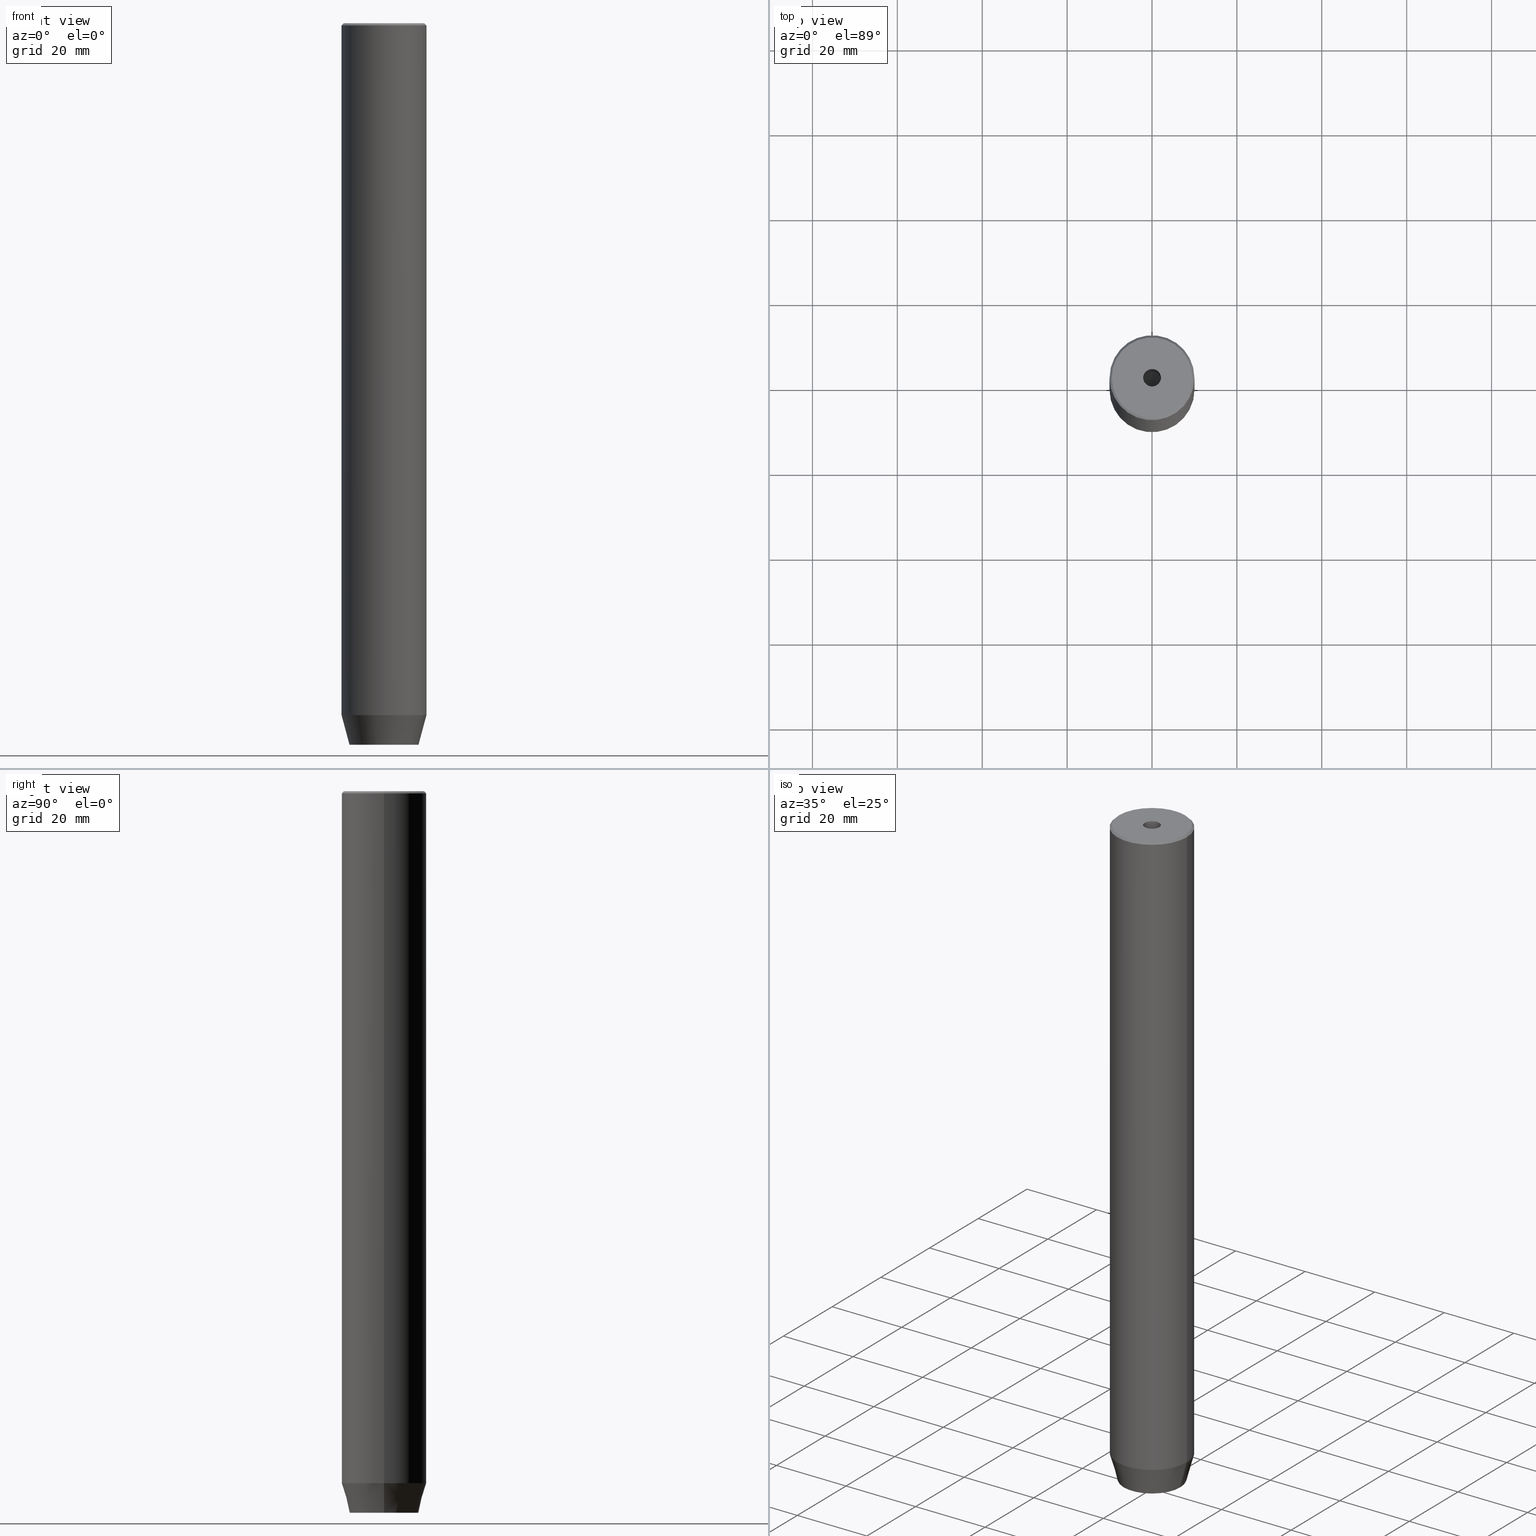
[diagram: canonical four-view strip — front | top / right | iso, engineering-drawing reading convention]
A machine part, canonical four-view strip (front | top / right | iso — engineering-drawing reading convention). The complete STEP part file that produces these views, byte-faithful:
ISO-10303-21;
HEADER;
FILE_DESCRIPTION (( 'STEP AP203' ),
    '1' );
FILE_NAME ('cb04.STEP',
    '2024-01-02T19:04:12',
    ( '' ),
    ( '' ),
    'SwSTEP 2.0',
    'SolidWorks 2019',
    '' );
FILE_SCHEMA (( 'CONFIG_CONTROL_DESIGN' ));
ENDSEC;

DATA;
#1 = AXIS2_PLACEMENT_3D ( 'NONE', #403, #184, #138 ) ;
#2 = FACE_OUTER_BOUND ( 'NONE', #290, .T. ) ;
#3 = ORIENTED_EDGE ( 'NONE', *, *, #459, .F. ) ;
#4 = CARTESIAN_POINT ( 'NONE',  ( 2.000000000000000444, 3.464101615137754386, -170.0000000000000000 ) ) ;
#5 = DIRECTION ( 'NONE',  ( 0.8660254037844384856, 0.5000000000000002220, 0.000000000000000000 ) ) ;
#6 = ORIENTED_EDGE ( 'NONE', *, *, #306, .F. ) ;
#7 = DIRECTION ( 'NONE',  ( 0.000000000000000000, 0.000000000000000000, 1.000000000000000000 ) ) ;
#8 = CARTESIAN_POINT ( 'NONE',  ( 4.336808689942017736E-16, -4.618802153517006737, -167.2000000000000171 ) ) ;
#9 = VERTEX_POINT ( 'NONE', #70 ) ;
#10 = ORIENTED_EDGE ( 'NONE', *, *, #431, .T. ) ;
#11 = DIRECTION ( 'NONE',  ( -0.000000000000000000, -0.000000000000000000, 1.000000000000000000 ) ) ;
#12 = AXIS2_PLACEMENT_3D ( 'NONE', #384, #158, #7 ) ;
#13 = EDGE_LOOP ( 'NONE', ( #19, #339, #200, #374 ) ) ;
#14 = CC_DESIGN_SECURITY_CLASSIFICATION ( #390, ( #280 ) ) ;
#15 = EDGE_LOOP ( 'NONE', ( #393, #432, #225 ) ) ;
#16 = DIRECTION ( 'NONE',  ( 0.8660254037844385966, -0.5000000000000001110, 0.000000000000000000 ) ) ;
#17 = ORIENTED_EDGE ( 'NONE', *, *, #457, .F. ) ;
#18 = CARTESIAN_POINT ( 'NONE',  ( -2.000000000000000888, -3.464101615137754386, -167.2000000000000171 ) ) ;
#19 = ORIENTED_EDGE ( 'NONE', *, *, #75, .T. ) ;
#20 = ADVANCED_FACE ( 'NONE', ( #257 ), #203, .T. ) ;
#21 = ORIENTED_EDGE ( 'NONE', *, *, #311, .F. ) ;
#22 = DIRECTION ( 'NONE',  ( -0.8660254037844385966, -0.4999999999999999445, 0.000000000000000000 ) ) ;
#23 = CARTESIAN_POINT ( 'NONE',  ( 0.000000000000000000, 0.000000000000000000, -162.9999999999999716 ) ) ;
#24 = CC_DESIGN_PERSON_AND_ORGANIZATION_ASSIGNMENT ( #282, #137, ( #280 ) ) ;
#25 = AXIS2_PLACEMENT_3D ( 'NONE', #185, #362, #462 ) ;
#26 = CIRCLE ( 'NONE', #131, 10.00000000000000000 ) ;
#27 = CARTESIAN_POINT ( 'NONE',  ( 2.000000000000000444, 3.464101615137754386, -167.2000000000000171 ) ) ;
#28 = PLANE ( 'NONE',  #352 ) ;
#29 = VERTEX_POINT ( 'NONE', #388 ) ;
#30 = CARTESIAN_POINT ( 'NONE',  ( -4.000000000000000000, -2.309401076758503368, -167.2000000000000171 ) ) ;
#31 = CARTESIAN_POINT ( 'NONE',  ( 2.099999999999995648, 0.000000000000000000, -25.00000000000000000 ) ) ;
#32 = VERTEX_POINT ( 'NONE', #563 ) ;
#33 = DIRECTION ( 'NONE',  ( -0.000000000000000000, -0.000000000000000000, -1.000000000000000000 ) ) ;
#34 = VECTOR ( 'NONE', #160, 1000.000000000000000 ) ;
#35 = CARTESIAN_POINT ( 'NONE',  ( 0.000000000000000000, 8.124355652982128362, -170.0000000000000000 ) ) ;
#36 = VERTEX_POINT ( 'NONE', #105 ) ;
#37 = ADVANCED_FACE ( 'NONE', ( #422 ), #269, .F. ) ;
#38 = ORIENTED_EDGE ( 'NONE', *, *, #186, .T. ) ;
#39 = CALENDAR_DATE ( 2024, 2, 1 ) ;
#40 = FACE_BOUND ( 'NONE', #84, .T. ) ;
#41 = CARTESIAN_POINT ( 'NONE',  ( 0.000000000000000000, 0.000000000000000000, 0.000000000000000000 ) ) ;
#42 = EDGE_LOOP ( 'NONE', ( #347, #61, #140, #360 ) ) ;
#43 = APPROVAL_DATE_TIME ( #177, #513 ) ;
#44 = CARTESIAN_POINT ( 'NONE',  ( -2.000000000000000000, 3.464101615137754830, -170.0000000000000000 ) ) ;
#45 = CARTESIAN_POINT ( 'NONE',  ( 0.000000000000000000, 0.000000000000000000, -170.0000000000000000 ) ) ;
#46 = ORIENTED_EDGE ( 'NONE', *, *, #425, .T. ) ;
#47 = DIRECTION ( 'NONE',  ( 1.000000000000000000, 0.000000000000000000, 0.000000000000000000 ) ) ;
#48 = EDGE_CURVE ( 'NONE', #534, #484, #536, .T. ) ;
#49 = EDGE_CURVE ( 'NONE', #36, #557, #227, .T. ) ;
#50 = CARTESIAN_POINT ( 'NONE',  ( -9.499999999999980460, 0.000000000000000000, 0.000000000000000000 ) ) ;
#51 = PERSON_AND_ORGANIZATION ( #287, #154 ) ;
#52 = CARTESIAN_POINT ( 'NONE',  ( 2.000000000000000444, 3.464101615137754386, -167.2000000000000171 ) ) ;
#53 = FACE_OUTER_BOUND ( 'NONE', #60, .T. ) ;
#54 = EDGE_LOOP ( 'NONE', ( #349, #129, #511, #295 ) ) ;
#55 = AXIS2_PLACEMENT_3D ( 'NONE', #45, #233, #319 ) ;
#56 = DIRECTION ( 'NONE',  ( -0.8660254037844384856, 0.5000000000000002220, 0.000000000000000000 ) ) ;
#57 = CC_DESIGN_APPROVAL ( #554, ( #280 ) ) ;
#58 = ADVANCED_FACE ( 'NONE', ( #40, #452 ), #190, .T. ) ;
#59 = CARTESIAN_POINT ( 'NONE',  ( 4.000000000000000000, 2.309401076758503368, -167.2000000000000171 ) ) ;
#60 = EDGE_LOOP ( 'NONE', ( #244, #38, #555, #197 ) ) ;
#61 = ORIENTED_EDGE ( 'NONE', *, *, #387, .T. ) ;
#62 = DIRECTION ( 'NONE',  ( 0.000000000000000000, 0.000000000000000000, -1.000000000000000000 ) ) ;
#63 = ORIENTED_EDGE ( 'NONE', *, *, #431, .F. ) ;
#64 = ADVANCED_FACE ( 'NONE', ( #91 ), #366, .F. ) ;
#65 = DIRECTION ( 'NONE',  ( -0.000000000000000000, -0.000000000000000000, 1.000000000000000000 ) ) ;
#66 = ORIENTED_EDGE ( 'NONE', *, *, #195, .F. ) ;
#67 = AXIS2_PLACEMENT_3D ( 'NONE', #340, #249, #293 ) ;
#68 = DIRECTION ( 'NONE',  ( 1.000000000000000000, 0.000000000000000000, 0.000000000000000000 ) ) ;
#69 = EDGE_CURVE ( 'NONE', #484, #230, #276, .T. ) ;
#70 = CARTESIAN_POINT ( 'NONE',  ( -2.099999999999998757, 2.571758278209440478E-16, -1.990051048614449116E-16 ) ) ;
#71 = CARTESIAN_POINT ( 'NONE',  ( 0.000000000000000000, 4.618802153517006737, -167.2000000000000171 ) ) ;
#72 = CARTESIAN_POINT ( 'NONE',  ( 0.000000000000000000, 0.000000000000000000, 0.000000000000000000 ) ) ;
#73 = CONICAL_SURFACE ( 'NONE', #193, 10.00000000000000000, 0.2617993877991499629 ) ;
#74 = CARTESIAN_POINT ( 'NONE',  ( 4.000000000000000000, -2.309401076758502480, -170.0000000000000000 ) ) ;
#75 = EDGE_CURVE ( 'NONE', #557, #32, #289, .T. ) ;
#76 = DIRECTION ( 'NONE',  ( 0.000000000000000000, 1.000000000000000000, 0.000000000000000000 ) ) ;
#77 = LINE ( 'NONE', #305, #310 ) ;
#78 = DESIGN_CONTEXT ( 'detailed design', #198, 'design' ) ;
#79 = LINE ( 'NONE', #260, #321 ) ;
#80 = ADVANCED_FACE ( 'NONE', ( #333 ), #514, .F. ) ;
#81 = VECTOR ( 'NONE', #414, 1000.000000000000114 ) ;
#82 = APPROVAL_PERSON_ORGANIZATION ( #95, #513, #83 ) ;
#83 = APPROVAL_ROLE ( '' ) ;
#84 = EDGE_LOOP ( 'NONE', ( #136, #266 ) ) ;
#85 = EDGE_CURVE ( 'NONE', #356, #552, #523, .T. ) ;
#86 = DATE_AND_TIME ( #39, #418 ) ;
#87 = DIRECTION ( 'NONE',  ( 0.8660254037844387076, 0.5000000000000001110, 0.000000000000000000 ) ) ;
#88 = LINE ( 'NONE', #504, #170 ) ;
#89 = ORIENTED_EDGE ( 'NONE', *, *, #49, .F. ) ;
#90 = DATE_AND_TIME ( #573, #470 ) ;
#91 = FACE_OUTER_BOUND ( 'NONE', #439, .T. ) ;
#92 = DIRECTION ( 'NONE',  ( -0.000000000000000000, -0.000000000000000000, -1.000000000000000000 ) ) ;
#93 = VECTOR ( 'NONE', #323, 1000.000000000000000 ) ;
#94 = AXIS2_PLACEMENT_3D ( 'NONE', #281, #587, #47 ) ;
#95 = PERSON_AND_ORGANIZATION ( #287, #154 ) ;
#96 = VECTOR ( 'NONE', #33, 1000.000000000000000 ) ;
#97 = LINE ( 'NONE', #411, #580 ) ;
#98 = CALENDAR_DATE ( 2024, 2, 1 ) ;
#99 = LINE ( 'NONE', #52, #445 ) ;
#100 = DIRECTION ( 'NONE',  ( 1.000000000000000000, 0.000000000000000000, 0.000000000000000000 ) ) ;
#101 = EDGE_LOOP ( 'NONE', ( #376, #210, #547, #208 ) ) ;
#102 = CYLINDRICAL_SURFACE ( 'NONE', #516, 2.099999999999996980 ) ;
#103 = ORIENTED_EDGE ( 'NONE', *, *, #214, .T. ) ;
#104 = CIRCLE ( 'NONE', #55, 8.124355652982128362 ) ;
#105 = CARTESIAN_POINT ( 'NONE',  ( -4.000000000000000000, 2.309401076758503368, -170.0000000000000000 ) ) ;
#106 = CARTESIAN_POINT ( 'NONE',  ( 9.499999999999980460, 1.163414459189983119E-15, 0.000000000000000000 ) ) ;
#107 = VERTEX_POINT ( 'NONE', #50 ) ;
#108 = AXIS2_PLACEMENT_3D ( 'NONE', #512, #11, #467 ) ;
#109 = CARTESIAN_POINT ( 'NONE',  ( 4.336808689942017736E-16, -4.618802153517006737, -167.2000000000000171 ) ) ;
#110 = EDGE_LOOP ( 'NONE', ( #247, #424, #568, #181 ) ) ;
#111 = ORIENTED_EDGE ( 'NONE', *, *, #306, .T. ) ;
#112 = CARTESIAN_POINT ( 'NONE',  ( 2.099999999999996980, 0.000000000000000000, 0.000000000000000000 ) ) ;
#113 = ORIENTED_EDGE ( 'NONE', *, *, #69, .F. ) ;
#114 = PLANE ( 'NONE',  #144 ) ;
#115 = AXIS2_PLACEMENT_3D ( 'NONE', #199, #517, #243 ) ;
#116 = APPROVAL_PERSON_ORGANIZATION ( #51, #220, #535 ) ;
#117 = PRODUCT_RELATED_PRODUCT_CATEGORY ( 'detail', '', ( #487 ) ) ;
#118 = DIRECTION ( 'NONE',  ( -1.000000000000000000, 0.000000000000000000, -0.000000000000000000 ) ) ;
#119 = CARTESIAN_POINT ( 'NONE',  ( 4.000000000000000000, -2.309401076758502480, -167.2000000000000171 ) ) ;
#120 = ADVANCED_FACE ( 'NONE', ( #409 ), #73, .T. ) ;
#121 = CARTESIAN_POINT ( 'NONE',  ( 0.000000000000000000, 0.000000000000000000, -25.00000000000000000 ) ) ;
#122 = CARTESIAN_POINT ( 'NONE',  ( 0.000000000000000000, 0.000000000000000000, -25.00000000000000000 ) ) ;
#123 = AXIS2_PLACEMENT_3D ( 'NONE', #463, #322, #370 ) ;
#124 = AXIS2_PLACEMENT_3D ( 'NONE', #268, #572, #564 ) ;
#125 = CYLINDRICAL_SURFACE ( 'NONE', #570, 10.00000000000000000 ) ;
#126 = CARTESIAN_POINT ( 'NONE',  ( 10.00000000000000000, 0.000000000000000000, -162.9999999999999716 ) ) ;
#127 = APPROVAL_STATUS ( 'not_yet_approved' ) ;
#128 = VECTOR ( 'NONE', #456, 1000.000000000000114 ) ;
#129 = ORIENTED_EDGE ( 'NONE', *, *, #216, .F. ) ;
#130 = EDGE_CURVE ( 'NONE', #477, #356, #99, .T. ) ;
#131 = AXIS2_PLACEMENT_3D ( 'NONE', #520, #423, #386 ) ;
#132 = VECTOR ( 'NONE', #300, 1000.000000000000114 ) ;
#133 = APPROVAL_STATUS ( 'not_yet_approved' ) ;
#134 = DIRECTION ( 'NONE',  ( 1.000000000000000000, 0.000000000000000000, 0.000000000000000000 ) ) ;
#135 = DIRECTION ( 'NONE',  ( -1.000000000000000000, 0.000000000000000000, 0.000000000000000000 ) ) ;
#136 = ORIENTED_EDGE ( 'NONE', *, *, #250, .F. ) ;
#137 = PERSON_AND_ORGANIZATION_ROLE ( 'creator' ) ;
#138 = DIRECTION ( 'NONE',  ( 1.000000000000000000, 0.000000000000000000, 0.000000000000000000 ) ) ;
#139 = CARTESIAN_POINT ( 'NONE',  ( 10.00000000000000000, 0.000000000000000000, -0.4999999999999987232 ) ) ;
#140 = ORIENTED_EDGE ( 'NONE', *, *, #285, .F. ) ;
#141 = ADVANCED_FACE ( 'NONE', ( #405 ), #455, .F. ) ;
#142 = CARTESIAN_POINT ( 'NONE',  ( 9.499999999999980460, 1.194030629168668286E-15, 0.000000000000000000 ) ) ;
#143 = VECTOR ( 'NONE', #87, 999.9999999999998863 ) ;
#144 = AXIS2_PLACEMENT_3D ( 'NONE', #338, #373, #22 ) ;
#145 = APPROVAL_PERSON_ORGANIZATION ( #357, #554, #324 ) ;
#146 = CARTESIAN_POINT ( 'NONE',  ( -8.124355652982128362, 1.109796706851640162E-15, -170.0000000000000000 ) ) ;
#147 = VERTEX_POINT ( 'NONE', #317 ) ;
#148 = DIRECTION ( 'NONE',  ( 0.5000000000000003331, -0.8660254037844385966, 0.000000000000000000 ) ) ;
#149 = EDGE_LOOP ( 'NONE', ( #176, #354, #450, #447 ) ) ;
#150 = LINE ( 'NONE', #476, #194 ) ;
#151 = EDGE_CURVE ( 'NONE', #383, #36, #237, .T. ) ;
#152 = AXIS2_PLACEMENT_3D ( 'NONE', #546, #148, #5 ) ;
#153 = LINE ( 'NONE', #18, #561 ) ;
#154 = ORGANIZATION ( 'NEUR�EN�', 'NEUR�EN�', '' ) ;
#155 = ORIENTED_EDGE ( 'NONE', *, *, #394, .F. ) ;
#156 = LINE ( 'NONE', #420, #507 ) ;
#157 = ORIENTED_EDGE ( 'NONE', *, *, #571, .F. ) ;
#158 = DIRECTION ( 'NONE',  ( -1.000000000000000000, 0.000000000000000000, 0.000000000000000000 ) ) ;
#159 = EDGE_CURVE ( 'NONE', #168, #481, #180, .T. ) ;
#160 = DIRECTION ( 'NONE',  ( -0.000000000000000000, -0.000000000000000000, -1.000000000000000000 ) ) ;
#161 = EDGE_CURVE ( 'NONE', #230, #36, #493, .T. ) ;
#162 = VERTEX_POINT ( 'NONE', #31 ) ;
#163 = EDGE_LOOP ( 'NONE', ( #575, #444, #401, #468 ) ) ;
#164 = DIRECTION ( 'NONE',  ( -0.000000000000000000, -0.000000000000000000, 1.000000000000000000 ) ) ;
#165 = EDGE_CURVE ( 'NONE', #552, #284, #224, .T. ) ;
#166 = VERTEX_POINT ( 'NONE', #142 ) ;
#167 = FACE_OUTER_BOUND ( 'NONE', #54, .T. ) ;
#168 = VERTEX_POINT ( 'NONE', #146 ) ;
#169 = DIRECTION ( 'NONE',  ( -0.000000000000000000, -0.000000000000000000, -1.000000000000000000 ) ) ;
#170 = VECTOR ( 'NONE', #359, 1000.000000000000000 ) ;
#171 = AXIS2_PLACEMENT_3D ( 'NONE', #299, #205, #286 ) ;
#172 = LOCAL_TIME ( 20, 4, 12.00000000000000000, #313 ) ;
#173 = UNCERTAINTY_MEASURE_WITH_UNIT (LENGTH_MEASURE( 1.000000000000000082E-05 ), #530, 'distance_accuracy_value', 'NONE');
#174 = ADVANCED_FACE ( 'NONE', ( #399 ), #497, .T. ) ;
#175 = CARTESIAN_POINT ( 'NONE',  ( 4.000000000000000000, 0.000000000000000000, -167.2000000000000171 ) ) ;
#176 = ORIENTED_EDGE ( 'NONE', *, *, #387, .F. ) ;
#177 = DATE_AND_TIME ( #502, #172 ) ;
#178 = EDGE_CURVE ( 'NONE', #481, #275, #88, .T. ) ;
#179 = PERSON_AND_ORGANIZATION_ROLE ( 'design_supplier' ) ;
#180 = LINE ( 'NONE', #542, #343 ) ;
#181 = ORIENTED_EDGE ( 'NONE', *, *, #378, .F. ) ;
#182 = CIRCLE ( 'NONE', #261, 10.00000000000000000 ) ;
#183 = DATE_TIME_ROLE ( 'classification_date' ) ;
#184 = DIRECTION ( 'NONE',  ( 0.000000000000000000, -0.000000000000000000, 1.000000000000000000 ) ) ;
#185 = CARTESIAN_POINT ( 'NONE',  ( 0.000000000000000000, 0.000000000000000000, -1.990051048614449116E-16 ) ) ;
#186 = EDGE_CURVE ( 'NONE', #254, #9, #264, .T. ) ;
#187 = CC_DESIGN_PERSON_AND_ORGANIZATION_ASSIGNMENT ( #541, #223, ( #316 ) ) ;
#188 = MANIFOLD_SOLID_BREP ( 'Vrt�k z�vitn�ku pro M5 z�vit1', #543 ) ;
#189 = PERSON_AND_ORGANIZATION ( #287, #154 ) ;
#190 = PLANE ( 'NONE',  #1 ) ;
#191 = CARTESIAN_POINT ( 'NONE',  ( -2.099999999999995648, 2.571758278209436040E-16, -25.00000000000000000 ) ) ;
#192 = DIRECTION ( 'NONE',  ( -0.000000000000000000, -0.000000000000000000, 1.000000000000000000 ) ) ;
#193 = AXIS2_PLACEMENT_3D ( 'NONE', #415, #576, #549 ) ;
#194 = VECTOR ( 'NONE', #211, 1000.000000000000000 ) ;
#195 = EDGE_CURVE ( 'NONE', #29, #162, #325, .T. ) ;
#196 = CARTESIAN_POINT ( 'NONE',  ( -4.000000000000000000, 2.309401076758503368, -167.2000000000000171 ) ) ;
#197 = ORIENTED_EDGE ( 'NONE', *, *, #438, .F. ) ;
#198 = APPLICATION_CONTEXT ( 'configuration controlled 3d designs of mechanical parts and assemblies' ) ;
#199 = CARTESIAN_POINT ( 'NONE',  ( 0.000000000000000000, 0.000000000000000000, 0.000000000000000000 ) ) ;
#200 = ORIENTED_EDGE ( 'NONE', *, *, #130, .F. ) ;
#201 = FACE_OUTER_BOUND ( 'NONE', #460, .T. ) ;
#202 = VERTEX_POINT ( 'NONE', #500 ) ;
#203 = CONICAL_SURFACE ( 'NONE', #350, 10.00000000000000000, 0.2617993877991499629 ) ;
#204 = CIRCLE ( 'NONE', #171, 9.499999999999980460 ) ;
#205 = DIRECTION ( 'NONE',  ( -0.000000000000000000, -0.000000000000000000, 1.000000000000000000 ) ) ;
#206 = ORIENTED_EDGE ( 'NONE', *, *, #351, .F. ) ;
#207 = EDGE_CURVE ( 'NONE', #107, #275, #584, .T. ) ;
#208 = ORIENTED_EDGE ( 'NONE', *, *, #151, .T. ) ;
#209 = CARTESIAN_POINT ( 'NONE',  ( -4.000000000000000000, 2.309401076758503368, -167.2000000000000171 ) ) ;
#210 = ORIENTED_EDGE ( 'NONE', *, *, #532, .F. ) ;
#211 = DIRECTION ( 'NONE',  ( -0.000000000000000000, -0.000000000000000000, 1.000000000000000000 ) ) ;
#212 = DIRECTION ( 'NONE',  ( 1.000000000000000000, 0.000000000000000000, 0.000000000000000000 ) ) ;
#213 = FACE_OUTER_BOUND ( 'NONE', #408, .T. ) ;
#214 = EDGE_CURVE ( 'NONE', #315, #168, #104, .T. ) ;
#215 = DIRECTION ( 'NONE',  ( 1.000000000000000000, 0.000000000000000000, -0.000000000000000000 ) ) ;
#216 = EDGE_CURVE ( 'NONE', #552, #534, #97, .T. ) ;
#217 = CARTESIAN_POINT ( 'NONE',  ( 4.336808689942017736E-16, -4.618802153517006737, -170.0000000000000000 ) ) ;
#218 = DIRECTION ( 'NONE',  ( -0.000000000000000000, -0.000000000000000000, 1.000000000000000000 ) ) ;
#219 = VECTOR ( 'NONE', #550, 999.9999999999998863 ) ;
#220 = APPROVAL ( #454, 'NEUR�EN�' ) ;
#221 =( NAMED_UNIT ( * ) PLANE_ANGLE_UNIT ( ) SI_UNIT ( $, .RADIAN. ) );
#222 = ORIENTED_EDGE ( 'NONE', *, *, #367, .T. ) ;
#223 = PERSON_AND_ORGANIZATION_ROLE ( 'creator' ) ;
#224 = LINE ( 'NONE', #540, #81 ) ;
#225 = ORIENTED_EDGE ( 'NONE', *, *, #459, .T. ) ;
#226 = DATE_AND_TIME ( #402, #334 ) ;
#227 = LINE ( 'NONE', #44, #143 ) ;
#228 = CARTESIAN_POINT ( 'NONE',  ( -4.000000000000000000, -2.309401076758503368, -170.0000000000000000 ) ) ;
#229 = AXIS2_PLACEMENT_3D ( 'NONE', #122, #574, #134 ) ;
#230 = VERTEX_POINT ( 'NONE', #228 ) ;
#231 = AXIS2_PLACEMENT_3D ( 'NONE', #121, #218, #436 ) ;
#232 = CARTESIAN_POINT ( 'NONE',  ( 2.000000000000000888, -3.464101615137754386, -170.0000000000000000 ) ) ;
#233 = DIRECTION ( 'NONE',  ( -0.000000000000000000, -0.000000000000000000, 1.000000000000000000 ) ) ;
#234 = CARTESIAN_POINT ( 'NONE',  ( 0.000000000000000000, 0.000000000000000000, -1.990051048614449116E-16 ) ) ;
#235 = ADVANCED_FACE ( 'NONE', ( #453 ), #435, .T. ) ;
#236 = SECURITY_CLASSIFICATION_LEVEL ( 'unclassified' ) ;
#237 = LINE ( 'NONE', #196, #427 ) ;
#238 = ORIENTED_EDGE ( 'NONE', *, *, #161, .F. ) ;
#239 = CARTESIAN_POINT ( 'NONE',  ( -2.000000000000000888, -3.464101615137754386, -170.0000000000000000 ) ) ;
#240 = AXIS2_PLACEMENT_3D ( 'NONE', #234, #192, #100 ) ;
#241 = AXIS2_PLACEMENT_3D ( 'NONE', #277, #308, #361 ) ;
#242 = CC_DESIGN_DATE_AND_TIME_ASSIGNMENT ( #86, #398, ( #316 ) ) ;
#243 = DIRECTION ( 'NONE',  ( 1.000000000000000000, 0.000000000000000000, 0.000000000000000000 ) ) ;
#244 = ORIENTED_EDGE ( 'NONE', *, *, #367, .F. ) ;
#245 = ORIENTED_EDGE ( 'NONE', *, *, #178, .F. ) ;
#246 = CARTESIAN_POINT ( 'NONE',  ( 8.124355652982128362, 0.000000000000000000, -170.0000000000000000 ) ) ;
#247 = ORIENTED_EDGE ( 'NONE', *, *, #400, .T. ) ;
#248 = VERTEX_POINT ( 'NONE', #139 ) ;
#249 = DIRECTION ( 'NONE',  ( -0.000000000000000000, -0.000000000000000000, 1.000000000000000000 ) ) ;
#250 = EDGE_CURVE ( 'NONE', #202, #9, #469, .T. ) ;
#251 = CC_DESIGN_PERSON_AND_ORGANIZATION_ASSIGNMENT ( #189, #179, ( #280 ) ) ;
#252 = DIRECTION ( 'NONE',  ( 1.000000000000000000, 0.000000000000000000, 0.000000000000000000 ) ) ;
#253 = AXIS2_PLACEMENT_3D ( 'NONE', #301, #164, #395 ) ;
#254 = VERTEX_POINT ( 'NONE', #191 ) ;
#255 = VERTEX_POINT ( 'NONE', #417 ) ;
#256 = DIRECTION ( 'NONE',  ( 0.000000000000000000, 1.000000000000000000, 0.000000000000000000 ) ) ;
#257 = FACE_OUTER_BOUND ( 'NONE', #505, .T. ) ;
#258 = PLANE ( 'NONE',  #429 ) ;
#259 = CIRCLE ( 'NONE', #240, 2.099999999999998757 ) ;
#260 = CARTESIAN_POINT ( 'NONE',  ( 4.000000000000000000, 2.309401076758503368, -167.2000000000000171 ) ) ;
#261 = AXIS2_PLACEMENT_3D ( 'NONE', #328, #426, #382 ) ;
#262 = CC_DESIGN_PERSON_AND_ORGANIZATION_ASSIGNMENT ( #537, #451, ( #390 ) ) ;
#263 = FACE_OUTER_BOUND ( 'NONE', #518, .T. ) ;
#264 = LINE ( 'NONE', #278, #404 ) ;
#265 = PLANE ( 'NONE',  #458 ) ;
#266 = ORIENTED_EDGE ( 'NONE', *, *, #272, .F. ) ;
#267 = ADVANCED_FACE ( 'NONE', ( #53 ), #365, .F. ) ;
#268 = CARTESIAN_POINT ( 'NONE',  ( 0.000000000000000000, 0.000000000000000000, -25.00000000000000000 ) ) ;
#269 = CONICAL_SURFACE ( 'NONE', #229, 2.099999999999995648, 1.029744258676651647 ) ;
#270 = MECHANICAL_CONTEXT ( 'NONE', #461, 'mechanical' ) ;
#271 = ORIENTED_EDGE ( 'NONE', *, *, #186, .F. ) ;
#272 = EDGE_CURVE ( 'NONE', #9, #202, #259, .T. ) ;
#273 = PERSON_AND_ORGANIZATION_ROLE ( 'design_owner' ) ;
#274 = CARTESIAN_POINT ( 'NONE',  ( -9.499999999999980460, 0.000000000000000000, 0.000000000000000000 ) ) ;
#275 = VERTEX_POINT ( 'NONE', #283 ) ;
#276 = LINE ( 'NONE', #239, #298 ) ;
#277 = CARTESIAN_POINT ( 'NONE',  ( 0.000000000000000000, 0.000000000000000000, 0.000000000000000000 ) ) ;
#278 = CARTESIAN_POINT ( 'NONE',  ( -2.099999999999996980, 2.571758278209438013E-16, 0.000000000000000000 ) ) ;
#279 = ADVANCED_FACE ( 'NONE', ( #2 ), #371, .F. ) ;
#280 = PRODUCT_DEFINITION_FORMATION_WITH_SPECIFIED_SOURCE ( 'LIBOVOLN�', '', #487, .NOT_KNOWN. ) ;
#281 = CARTESIAN_POINT ( 'NONE',  ( 0.000000000000000000, 0.000000000000000000, 0.000000000000000000 ) ) ;
#282 = PERSON_AND_ORGANIZATION ( #287, #154 ) ;
#283 = CARTESIAN_POINT ( 'NONE',  ( -10.00000000000000000, 1.224646799147353256E-15, -0.4999999999999987232 ) ) ;
#284 = VERTEX_POINT ( 'NONE', #8 ) ;
#285 = EDGE_CURVE ( 'NONE', #275, #248, #303, .T. ) ;
#286 = DIRECTION ( 'NONE',  ( 1.000000000000000000, 0.000000000000000000, 0.000000000000000000 ) ) ;
#287 = PERSON ( 'NEUR�EN�', 'NEUR�EN�', 'NEUR�EN�', ('NEUR�EN�'), ('NEUR�EN�'), ('NEUR�EN�') ) ;
#288 = AXIS2_PLACEMENT_3D ( 'NONE', #506, #586, #406 ) ;
#289 = LINE ( 'NONE', #4, #529 ) ;
#290 = EDGE_LOOP ( 'NONE', ( #519, #21, #331, #363 ) ) ;
#291 = LINE ( 'NONE', #473, #525 ) ;
#292 = ORIENTED_EDGE ( 'NONE', *, *, #438, .T. ) ;
#293 = DIRECTION ( 'NONE',  ( 1.000000000000000000, 0.000000000000000000, 0.000000000000000000 ) ) ;
#294 = EDGE_CURVE ( 'NONE', #147, #383, #156, .T. ) ;
#295 = ORIENTED_EDGE ( 'NONE', *, *, #503, .T. ) ;
#296 = LINE ( 'NONE', #109, #34 ) ;
#297 = ORIENTED_EDGE ( 'NONE', *, *, #327, .T. ) ;
#298 = VECTOR ( 'NONE', #419, 1000.000000000000114 ) ;
#299 = CARTESIAN_POINT ( 'NONE',  ( 0.000000000000000000, 0.000000000000000000, 0.000000000000000000 ) ) ;
#300 = DIRECTION ( 'NONE',  ( 0.2588190451025212391, 0.000000000000000000, 0.9659258262890680902 ) ) ;
#301 = CARTESIAN_POINT ( 'NONE',  ( 0.000000000000000000, 0.000000000000000000, 0.000000000000000000 ) ) ;
#302 = DIRECTION ( 'NONE',  ( -0.000000000000000000, -0.000000000000000000, 1.000000000000000000 ) ) ;
#303 = CIRCLE ( 'NONE', #428, 10.00000000000000000 ) ;
#304 = CC_DESIGN_APPROVAL ( #220, ( #316 ) ) ;
#305 = CARTESIAN_POINT ( 'NONE',  ( -2.099999999999995648, 2.571758278209436040E-16, -25.00000000000000000 ) ) ;
#306 = EDGE_CURVE ( 'NONE', #284, #147, #153, .T. ) ;
#307 = LINE ( 'NONE', #126, #132 ) ;
#308 = DIRECTION ( 'NONE',  ( 0.000000000000000000, 0.000000000000000000, 1.000000000000000000 ) ) ;
#309 = VECTOR ( 'NONE', #369, 1000.000000000000000 ) ;
#310 = VECTOR ( 'NONE', #389, 1000.000000000000114 ) ;
#311 = EDGE_CURVE ( 'NONE', #284, #484, #296, .T. ) ;
#312 = EDGE_LOOP ( 'NONE', ( #372, #297 ) ) ;
#313 = COORDINATED_UNIVERSAL_TIME_OFFSET ( 1, 0, .AHEAD. ) ;
#314 = CARTESIAN_POINT ( 'NONE',  ( 2.099999999999995648, 0.000000000000000000, -25.00000000000000000 ) ) ;
#315 = VERTEX_POINT ( 'NONE', #246 ) ;
#316 = PRODUCT_DEFINITION ( 'NEZN�M�', '', #280, #78 ) ;
#317 = CARTESIAN_POINT ( 'NONE',  ( -4.000000000000000000, -2.309401076758503368, -167.2000000000000171 ) ) ;
#318 = ORIENTED_EDGE ( 'NONE', *, *, #85, .T. ) ;
#319 = DIRECTION ( 'NONE',  ( 1.000000000000000000, 0.000000000000000000, 0.000000000000000000 ) ) ;
#320 = CIRCLE ( 'NONE', #67, 10.00000000000000000 ) ;
#321 = VECTOR ( 'NONE', #567, 1000.000000000000000 ) ;
#322 = DIRECTION ( 'NONE',  ( -0.5000000000000003331, -0.8660254037844385966, 0.000000000000000000 ) ) ;
#323 = DIRECTION ( 'NONE',  ( 0.000000000000000000, -1.000000000000000000, 0.000000000000000000 ) ) ;
#324 = APPROVAL_ROLE ( '' ) ;
#325 = LINE ( 'NONE', #314, #128 ) ;
#326 = ORIENTED_EDGE ( 'NONE', *, *, #214, .F. ) ;
#327 = EDGE_CURVE ( 'NONE', #166, #107, #204, .T. ) ;
#328 = CARTESIAN_POINT ( 'NONE',  ( 0.000000000000000000, 0.000000000000000000, -0.4999999999999987232 ) ) ;
#329 = ORIENTED_EDGE ( 'NONE', *, *, #159, .T. ) ;
#330 = DIRECTION ( 'NONE',  ( -0.000000000000000000, -0.000000000000000000, 1.000000000000000000 ) ) ;
#331 = ORIENTED_EDGE ( 'NONE', *, *, #165, .F. ) ;
#332 = EDGE_CURVE ( 'NONE', #107, #166, #490, .T. ) ;
#333 = FACE_OUTER_BOUND ( 'NONE', #163, .T. ) ;
#334 = LOCAL_TIME ( 20, 4, 12.00000000000000000, #449 ) ;
#335 = CC_DESIGN_APPROVAL ( #513, ( #390 ) ) ;
#336 = DIRECTION ( 'NONE',  ( 1.000000000000000000, 0.000000000000000000, 0.000000000000000000 ) ) ;
#337 = ORIENTED_EDGE ( 'NONE', *, *, #48, .F. ) ;
#338 = CARTESIAN_POINT ( 'NONE',  ( -2.000000000000000000, 3.464101615137754830, -167.2000000000000171 ) ) ;
#339 = ORIENTED_EDGE ( 'NONE', *, *, #503, .F. ) ;
#340 = CARTESIAN_POINT ( 'NONE',  ( 0.000000000000000000, 0.000000000000000000, -162.9999999999999716 ) ) ;
#341 = ADVANCED_BREP_SHAPE_REPRESENTATION ( 'cb04', ( #188, #241 ), #407 ) ;
#342 = ORIENTED_EDGE ( 'NONE', *, *, #130, .T. ) ;
#343 = VECTOR ( 'NONE', #465, 1000.000000000000114 ) ;
#344 =( NAMED_UNIT ( * ) SI_UNIT ( $, .STERADIAN. ) SOLID_ANGLE_UNIT ( ) );
#345 = ADVANCED_FACE ( 'NONE', ( #485 ), #114, .F. ) ;
#346 = CARTESIAN_POINT ( 'NONE',  ( 0.000000000000000000, 0.000000000000000000, -167.2000000000000171 ) ) ;
#347 = ORIENTED_EDGE ( 'NONE', *, *, #327, .F. ) ;
#348 = CARTESIAN_POINT ( 'NONE',  ( -10.00000000000000000, 1.224646799147353256E-15, -162.9999999999999716 ) ) ;
#349 = ORIENTED_EDGE ( 'NONE', *, *, #394, .T. ) ;
#350 = AXIS2_PLACEMENT_3D ( 'NONE', #23, #381, #212 ) ;
#351 = EDGE_CURVE ( 'NONE', #481, #255, #320, .T. ) ;
#352 = AXIS2_PLACEMENT_3D ( 'NONE', #175, #215, #531 ) ;
#353 = DIRECTION ( 'NONE',  ( 0.000000000000000000, 0.000000000000000000, -1.000000000000000000 ) ) ;
#354 = ORIENTED_EDGE ( 'NONE', *, *, #332, .F. ) ;
#355 = APPROVAL_DATE_TIME ( #364, #554 ) ;
#356 = VERTEX_POINT ( 'NONE', #59 ) ;
#357 = PERSON_AND_ORGANIZATION ( #287, #154 ) ;
#358 = DIRECTION ( 'NONE',  ( -0.8660254037844384856, -0.5000000000000002220, 0.000000000000000000 ) ) ;
#359 = DIRECTION ( 'NONE',  ( -0.000000000000000000, -0.000000000000000000, 1.000000000000000000 ) ) ;
#360 = ORIENTED_EDGE ( 'NONE', *, *, #207, .F. ) ;
#361 = DIRECTION ( 'NONE',  ( 1.000000000000000000, 0.000000000000000000, 0.000000000000000000 ) ) ;
#362 = DIRECTION ( 'NONE',  ( -0.000000000000000000, -0.000000000000000000, 1.000000000000000000 ) ) ;
#363 = ORIENTED_EDGE ( 'NONE', *, *, #216, .T. ) ;
#364 = DATE_AND_TIME ( #98, #583 ) ;
#365 = CYLINDRICAL_SURFACE ( 'NONE', #94, 2.099999999999996980 ) ;
#366 = PLANE ( 'NONE',  #123 ) ;
#367 = EDGE_CURVE ( 'NONE', #254, #162, #483, .T. ) ;
#368 = EDGE_CURVE ( 'NONE', #383, #477, #556, .T. ) ;
#369 = DIRECTION ( 'NONE',  ( -0.7071067811865622277, 0.000000000000000000, -0.7071067811865328068 ) ) ;
#370 = DIRECTION ( 'NONE',  ( 0.8660254037844384856, -0.5000000000000002220, 0.000000000000000000 ) ) ;
#371 = PLANE ( 'NONE',  #152 ) ;
#372 = ORIENTED_EDGE ( 'NONE', *, *, #332, .T. ) ;
#373 = DIRECTION ( 'NONE',  ( -0.5000000000000000000, 0.8660254037844387076, 0.000000000000000000 ) ) ;
#374 = ORIENTED_EDGE ( 'NONE', *, *, #532, .T. ) ;
#375 = CARTESIAN_POINT ( 'NONE',  ( 0.000000000000000000, 0.000000000000000000, 0.000000000000000000 ) ) ;
#376 = ORIENTED_EDGE ( 'NONE', *, *, #49, .T. ) ;
#377 = VECTOR ( 'NONE', #358, 1000.000000000000114 ) ;
#378 = EDGE_CURVE ( 'NONE', #255, #248, #150, .T. ) ;
#379 = LINE ( 'NONE', #112, #491 ) ;
#380 = ORIENTED_EDGE ( 'NONE', *, *, #351, .T. ) ;
#381 = DIRECTION ( 'NONE',  ( -0.000000000000000000, -0.000000000000000000, 1.000000000000000000 ) ) ;
#382 = DIRECTION ( 'NONE',  ( 1.000000000000000000, 0.000000000000000000, 0.000000000000000000 ) ) ;
#383 = VERTEX_POINT ( 'NONE', #209 ) ;
#384 = CARTESIAN_POINT ( 'NONE',  ( -4.000000000000000000, 0.000000000000000000, -167.2000000000000171 ) ) ;
#385 = ORIENTED_EDGE ( 'NONE', *, *, #368, .T. ) ;
#386 = DIRECTION ( 'NONE',  ( 1.000000000000000000, 0.000000000000000000, 0.000000000000000000 ) ) ;
#387 = EDGE_CURVE ( 'NONE', #166, #248, #515, .T. ) ;
#388 = CARTESIAN_POINT ( 'NONE',  ( -6.432287649943602629E-15, 0.000000000000000000, -26.26180729995787999 ) ) ;
#389 = DIRECTION ( 'NONE',  ( -0.8571673007021108903, 1.049727191138616847E-16, 0.5150380749100565980 ) ) ;
#390 = SECURITY_CLASSIFICATION ( '', '', #236 ) ;
#391 = DIRECTION ( 'NONE',  ( 0.5000000000000001110, 0.8660254037844385966, -0.000000000000000000 ) ) ;
#392 = DIRECTION ( 'NONE',  ( 1.000000000000000000, 0.000000000000000000, 0.000000000000000000 ) ) ;
#393 = ORIENTED_EDGE ( 'NONE', *, *, #533, .F. ) ;
#394 = EDGE_CURVE ( 'NONE', #32, #534, #291, .T. ) ;
#395 = DIRECTION ( 'NONE',  ( 1.000000000000000000, 0.000000000000000000, 0.000000000000000000 ) ) ;
#396 = ORIENTED_EDGE ( 'NONE', *, *, #294, .T. ) ;
#397 = ORIENTED_EDGE ( 'NONE', *, *, #159, .F. ) ;
#398 = DATE_TIME_ROLE ( 'creation_date' ) ;
#399 = FACE_OUTER_BOUND ( 'NONE', #149, .T. ) ;
#400 = EDGE_CURVE ( 'NONE', #255, #481, #26, .T. ) ;
#401 = ORIENTED_EDGE ( 'NONE', *, *, #294, .F. ) ;
#402 = CALENDAR_DATE ( 2024, 2, 1 ) ;
#403 = CARTESIAN_POINT ( 'NONE',  ( 0.000000000000000000, 0.000000000000000000, 0.000000000000000000 ) ) ;
#404 = VECTOR ( 'NONE', #538, 1000.000000000000000 ) ;
#405 = FACE_OUTER_BOUND ( 'NONE', #13, .T. ) ;
#406 = DIRECTION ( 'NONE',  ( -1.000000000000000000, 0.000000000000000000, 0.000000000000000000 ) ) ;
#407 =( GEOMETRIC_REPRESENTATION_CONTEXT ( 3 ) GLOBAL_UNCERTAINTY_ASSIGNED_CONTEXT ( ( #173 ) ) GLOBAL_UNIT_ASSIGNED_CONTEXT ( ( #530, #221, #344 ) ) REPRESENTATION_CONTEXT ( 'NONE', 'WORKASPACE' ) );
#408 = EDGE_LOOP ( 'NONE', ( #245, #380, #421, #46 ) ) ;
#409 = FACE_OUTER_BOUND ( 'NONE', #494, .T. ) ;
#410 = SHAPE_DEFINITION_REPRESENTATION ( #478, #341 ) ;
#411 = CARTESIAN_POINT ( 'NONE',  ( 4.000000000000000000, -2.309401076758502480, -167.2000000000000171 ) ) ;
#412 = ADVANCED_FACE ( 'NONE', ( #201 ), #102, .F. ) ;
#413 = PERSON_AND_ORGANIZATION ( #287, #154 ) ;
#414 = DIRECTION ( 'NONE',  ( -0.8660254037844384856, -0.5000000000000002220, 0.000000000000000000 ) ) ;
#415 = CARTESIAN_POINT ( 'NONE',  ( 0.000000000000000000, 0.000000000000000000, -162.9999999999999716 ) ) ;
#416 = DIRECTION ( 'NONE',  ( 0.8660254037844385966, -0.5000000000000001110, 0.000000000000000000 ) ) ;
#417 = CARTESIAN_POINT ( 'NONE',  ( 10.00000000000000000, 0.000000000000000000, -162.9999999999999716 ) ) ;
#418 = LOCAL_TIME ( 20, 4, 12.00000000000000000, #499 ) ;
#419 = DIRECTION ( 'NONE',  ( -0.8660254037844384856, 0.5000000000000002220, 0.000000000000000000 ) ) ;
#420 = CARTESIAN_POINT ( 'NONE',  ( -4.000000000000000000, 0.000000000000000000, -167.2000000000000171 ) ) ;
#421 = ORIENTED_EDGE ( 'NONE', *, *, #378, .T. ) ;
#422 = FACE_OUTER_BOUND ( 'NONE', #466, .T. ) ;
#423 = DIRECTION ( 'NONE',  ( -0.000000000000000000, -0.000000000000000000, 1.000000000000000000 ) ) ;
#424 = ORIENTED_EDGE ( 'NONE', *, *, #178, .T. ) ;
#425 = EDGE_CURVE ( 'NONE', #248, #275, #182, .T. ) ;
#426 = DIRECTION ( 'NONE',  ( 0.000000000000000000, 0.000000000000000000, -1.000000000000000000 ) ) ;
#427 = VECTOR ( 'NONE', #92, 1000.000000000000000 ) ;
#428 = AXIS2_PLACEMENT_3D ( 'NONE', #558, #62, #336 ) ;
#429 = AXIS2_PLACEMENT_3D ( 'NONE', #346, #488, #118 ) ;
#430 = DIRECTION ( 'NONE',  ( 0.7071067811865622277, 8.659560562355112817E-17, -0.7071067811865328068 ) ) ;
#431 = EDGE_CURVE ( 'NONE', #168, #315, #437, .T. ) ;
#432 = ORIENTED_EDGE ( 'NONE', *, *, #195, .T. ) ;
#433 = CARTESIAN_POINT ( 'NONE',  ( -2.000000000000000000, 3.464101615137754830, -167.2000000000000171 ) ) ;
#434 = AXIS2_PLACEMENT_3D ( 'NONE', #27, #391, #544 ) ;
#435 = CONICAL_SURFACE ( 'NONE', #288, 9.499999999999980460, 0.7853981633974691512 ) ;
#436 = DIRECTION ( 'NONE',  ( 1.000000000000000000, 0.000000000000000000, 0.000000000000000000 ) ) ;
#437 = CIRCLE ( 'NONE', #108, 8.124355652982128362 ) ;
#438 = EDGE_CURVE ( 'NONE', #162, #202, #379, .T. ) ;
#439 = EDGE_LOOP ( 'NONE', ( #566, #157, #6, #539 ) ) ;
#440 = CARTESIAN_POINT ( 'NONE',  ( 0.000000000000000000, 4.618802153517006737, -170.0000000000000000 ) ) ;
#441 = CARTESIAN_POINT ( 'NONE',  ( -4.000000000000000000, 0.000000000000000000, -170.0000000000000000 ) ) ;
#442 = ORIENTED_EDGE ( 'NONE', *, *, #75, .F. ) ;
#443 = LINE ( 'NONE', #30, #553 ) ;
#444 = ORIENTED_EDGE ( 'NONE', *, *, #151, .F. ) ;
#445 = VECTOR ( 'NONE', #416, 1000.000000000000000 ) ;
#446 = FACE_BOUND ( 'NONE', #585, .T. ) ;
#447 = ORIENTED_EDGE ( 'NONE', *, *, #425, .F. ) ;
#448 = ADVANCED_FACE ( 'NONE', ( #524 ), #125, .T. ) ;
#449 = COORDINATED_UNIVERSAL_TIME_OFFSET ( 1, 0, .AHEAD. ) ;
#450 = ORIENTED_EDGE ( 'NONE', *, *, #207, .T. ) ;
#451 = PERSON_AND_ORGANIZATION_ROLE ( 'classification_officer' ) ;
#452 = FACE_OUTER_BOUND ( 'NONE', #312, .T. ) ;
#453 = FACE_OUTER_BOUND ( 'NONE', #42, .T. ) ;
#454 = APPROVAL_STATUS ( 'not_yet_approved' ) ;
#455 = PLANE ( 'NONE',  #434 ) ;
#456 = DIRECTION ( 'NONE',  ( 0.8571673007021108903, 0.000000000000000000, 0.5150380749100565980 ) ) ;
#457 = EDGE_CURVE ( 'NONE', #315, #255, #307, .T. ) ;
#458 = AXIS2_PLACEMENT_3D ( 'NONE', #35, #353, #527 ) ;
#459 = EDGE_CURVE ( 'NONE', #162, #254, #508, .T. ) ;
#460 = EDGE_LOOP ( 'NONE', ( #271, #3, #292, #501 ) ) ;
#461 = APPLICATION_CONTEXT ( 'configuration controlled 3d designs of mechanical parts and assemblies' ) ;
#462 = DIRECTION ( 'NONE',  ( 1.000000000000000000, 0.000000000000000000, 0.000000000000000000 ) ) ;
#463 = CARTESIAN_POINT ( 'NONE',  ( -2.000000000000000888, -3.464101615137754386, -167.2000000000000171 ) ) ;
#464 = APPLICATION_PROTOCOL_DEFINITION ( 'international standard', 'config_control_design', 1994, #461 ) ;
#465 = DIRECTION ( 'NONE',  ( -0.2588190451025212391, 3.169619151431771721E-17, 0.9659258262890680902 ) ) ;
#466 = EDGE_LOOP ( 'NONE', ( #66, #579, #222 ) ) ;
#467 = DIRECTION ( 'NONE',  ( 1.000000000000000000, 0.000000000000000000, 0.000000000000000000 ) ) ;
#468 = ORIENTED_EDGE ( 'NONE', *, *, #571, .T. ) ;
#469 = CIRCLE ( 'NONE', #25, 2.099999999999998757 ) ;
#470 = LOCAL_TIME ( 20, 4, 12.00000000000000000, #582 ) ;
#471 = CARTESIAN_POINT ( 'NONE',  ( 4.000000000000000000, 0.000000000000000000, -167.2000000000000171 ) ) ;
#472 = ADVANCED_FACE ( 'NONE', ( #495 ), #562, .F. ) ;
#473 = CARTESIAN_POINT ( 'NONE',  ( 4.000000000000000000, 0.000000000000000000, -170.0000000000000000 ) ) ;
#474 = ORIENTED_EDGE ( 'NONE', *, *, #457, .T. ) ;
#475 = ORIENTED_EDGE ( 'NONE', *, *, #400, .F. ) ;
#476 = CARTESIAN_POINT ( 'NONE',  ( 10.00000000000000000, 0.000000000000000000, 0.000000000000000000 ) ) ;
#477 = VERTEX_POINT ( 'NONE', #486 ) ;
#478 = PRODUCT_DEFINITION_SHAPE ( 'NONE', 'NONE',  #316 ) ;
#479 = EDGE_LOOP ( 'NONE', ( #326, #63 ) ) ;
#480 = DIRECTION ( 'NONE',  ( 0.000000000000000000, -1.000000000000000000, 0.000000000000000000 ) ) ;
#481 = VERTEX_POINT ( 'NONE', #348 ) ;
#482 = CC_DESIGN_PERSON_AND_ORGANIZATION_ASSIGNMENT ( #413, #273, ( #487 ) ) ;
#483 = CIRCLE ( 'NONE', #581, 2.099999999999995648 ) ;
#484 = VERTEX_POINT ( 'NONE', #217 ) ;
#485 = FACE_OUTER_BOUND ( 'NONE', #101, .T. ) ;
#486 = CARTESIAN_POINT ( 'NONE',  ( 0.000000000000000000, 4.618802153517006737, -167.2000000000000171 ) ) ;
#487 = PRODUCT ( 'cb04', 'cb04', '', ( #270 ) ) ;
#488 = DIRECTION ( 'NONE',  ( 0.000000000000000000, 0.000000000000000000, -1.000000000000000000 ) ) ;
#489 = VECTOR ( 'NONE', #76, 1000.000000000000000 ) ;
#490 = CIRCLE ( 'NONE', #115, 9.499999999999980460 ) ;
#491 = VECTOR ( 'NONE', #65, 1000.000000000000000 ) ;
#492 = CYLINDRICAL_SURFACE ( 'NONE', #253, 10.00000000000000000 ) ;
#493 = LINE ( 'NONE', #441, #489 ) ;
#494 = EDGE_LOOP ( 'NONE', ( #397, #10, #474, #206 ) ) ;
#495 = FACE_OUTER_BOUND ( 'NONE', #15, .T. ) ;
#496 = ADVANCED_FACE ( 'NONE', ( #167 ), #28, .F. ) ;
#497 = CONICAL_SURFACE ( 'NONE', #560, 9.499999999999980460, 0.7853981633974691512 ) ;
#498 = APPROVAL_DATE_TIME ( #226, #220 ) ;
#499 = COORDINATED_UNIVERSAL_TIME_OFFSET ( 1, 0, .AHEAD. ) ;
#500 = CARTESIAN_POINT ( 'NONE',  ( 2.099999999999998757, 0.000000000000000000, -1.990051048614449116E-16 ) ) ;
#501 = ORIENTED_EDGE ( 'NONE', *, *, #250, .T. ) ;
#502 = CALENDAR_DATE ( 2024, 2, 1 ) ;
#503 = EDGE_CURVE ( 'NONE', #356, #32, #79, .T. ) ;
#504 = CARTESIAN_POINT ( 'NONE',  ( -10.00000000000000000, 1.224646799147353256E-15, 0.000000000000000000 ) ) ;
#505 = EDGE_LOOP ( 'NONE', ( #103, #329, #475, #17 ) ) ;
#506 = CARTESIAN_POINT ( 'NONE',  ( 0.000000000000000000, 0.000000000000000000, 0.000000000000000000 ) ) ;
#507 = VECTOR ( 'NONE', #256, 1000.000000000000000 ) ;
#508 = CIRCLE ( 'NONE', #231, 2.099999999999995648 ) ;
#509 = COORDINATED_UNIVERSAL_TIME_OFFSET ( 1, 0, .AHEAD. ) ;
#510 = DIRECTION ( 'NONE',  ( -0.000000000000000000, -0.000000000000000000, -1.000000000000000000 ) ) ;
#511 = ORIENTED_EDGE ( 'NONE', *, *, #85, .F. ) ;
#512 = CARTESIAN_POINT ( 'NONE',  ( 0.000000000000000000, 0.000000000000000000, -170.0000000000000000 ) ) ;
#513 = APPROVAL ( #133, 'NEUR�EN�' ) ;
#514 = PLANE ( 'NONE',  #12 ) ;
#515 = LINE ( 'NONE', #106, #545 ) ;
#516 = AXIS2_PLACEMENT_3D ( 'NONE', #375, #551, #68 ) ;
#517 = DIRECTION ( 'NONE',  ( -0.000000000000000000, -0.000000000000000000, 1.000000000000000000 ) ) ;
#518 = EDGE_LOOP ( 'NONE', ( #385, #342, #318, #522, #111, #396 ) ) ;
#519 = ORIENTED_EDGE ( 'NONE', *, *, #48, .T. ) ;
#520 = CARTESIAN_POINT ( 'NONE',  ( 0.000000000000000000, 0.000000000000000000, -162.9999999999999716 ) ) ;
#521 = CC_DESIGN_DATE_AND_TIME_ASSIGNMENT ( #90, #183, ( #390 ) ) ;
#522 = ORIENTED_EDGE ( 'NONE', *, *, #165, .T. ) ;
#523 = LINE ( 'NONE', #471, #93 ) ;
#524 = FACE_OUTER_BOUND ( 'NONE', #110, .T. ) ;
#525 = VECTOR ( 'NONE', #480, 1000.000000000000000 ) ;
#526 = ADVANCED_FACE ( 'NONE', ( #213 ), #492, .T. ) ;
#527 = DIRECTION ( 'NONE',  ( -1.000000000000000000, 0.000000000000000000, -0.000000000000000000 ) ) ;
#528 = LINE ( 'NONE', #71, #96 ) ;
#529 = VECTOR ( 'NONE', #16, 1000.000000000000000 ) ;
#530 =( LENGTH_UNIT ( ) NAMED_UNIT ( * ) SI_UNIT ( .MILLI., .METRE. ) );
#531 = DIRECTION ( 'NONE',  ( -0.000000000000000000, 0.000000000000000000, -1.000000000000000000 ) ) ;
#532 = EDGE_CURVE ( 'NONE', #477, #557, #528, .T. ) ;
#533 = EDGE_CURVE ( 'NONE', #29, #254, #77, .T. ) ;
#534 = VERTEX_POINT ( 'NONE', #74 ) ;
#535 = APPROVAL_ROLE ( '' ) ;
#536 = LINE ( 'NONE', #232, #377 ) ;
#537 = PERSON_AND_ORGANIZATION ( #287, #154 ) ;
#538 = DIRECTION ( 'NONE',  ( -0.000000000000000000, -0.000000000000000000, 1.000000000000000000 ) ) ;
#539 = ORIENTED_EDGE ( 'NONE', *, *, #311, .T. ) ;
#540 = CARTESIAN_POINT ( 'NONE',  ( 2.000000000000000888, -3.464101615137754386, -167.2000000000000171 ) ) ;
#541 = PERSON_AND_ORGANIZATION ( #287, #154 ) ;
#542 = CARTESIAN_POINT ( 'NONE',  ( -10.00000000000000000, 1.224646799147353256E-15, -162.9999999999999716 ) ) ;
#543 = CLOSED_SHELL ( 'NONE', ( #267, #37, #235, #20, #448, #565, #58, #526, #120, #174, #345, #80, #64, #279, #496, #141, #548, #472, #412 ) ) ;
#544 = DIRECTION ( 'NONE',  ( -0.8660254037844385966, 0.5000000000000001110, 0.000000000000000000 ) ) ;
#545 = VECTOR ( 'NONE', #430, 1000.000000000000000 ) ;
#546 = CARTESIAN_POINT ( 'NONE',  ( 2.000000000000000888, -3.464101615137754386, -167.2000000000000171 ) ) ;
#547 = ORIENTED_EDGE ( 'NONE', *, *, #368, .F. ) ;
#548 = ADVANCED_FACE ( 'NONE', ( #263 ), #258, .T. ) ;
#549 = DIRECTION ( 'NONE',  ( 1.000000000000000000, 0.000000000000000000, 0.000000000000000000 ) ) ;
#550 = DIRECTION ( 'NONE',  ( 0.8660254037844387076, 0.5000000000000001110, 0.000000000000000000 ) ) ;
#551 = DIRECTION ( 'NONE',  ( -0.000000000000000000, -0.000000000000000000, 1.000000000000000000 ) ) ;
#552 = VERTEX_POINT ( 'NONE', #119 ) ;
#553 = VECTOR ( 'NONE', #169, 1000.000000000000000 ) ;
#554 = APPROVAL ( #127, 'NEUR�EN�' ) ;
#555 = ORIENTED_EDGE ( 'NONE', *, *, #272, .T. ) ;
#556 = LINE ( 'NONE', #433, #219 ) ;
#557 = VERTEX_POINT ( 'NONE', #440 ) ;
#558 = CARTESIAN_POINT ( 'NONE',  ( 0.000000000000000000, 0.000000000000000000, -0.4999999999999987232 ) ) ;
#559 = CARTESIAN_POINT ( 'NONE',  ( 0.000000000000000000, 0.000000000000000000, -25.00000000000000000 ) ) ;
#560 = AXIS2_PLACEMENT_3D ( 'NONE', #41, #578, #135 ) ;
#561 = VECTOR ( 'NONE', #56, 1000.000000000000114 ) ;
#562 = CONICAL_SURFACE ( 'NONE', #124, 2.099999999999995648, 1.029744258676651647 ) ;
#563 = CARTESIAN_POINT ( 'NONE',  ( 4.000000000000000000, 2.309401076758503368, -170.0000000000000000 ) ) ;
#564 = DIRECTION ( 'NONE',  ( 1.000000000000000000, 0.000000000000000000, 0.000000000000000000 ) ) ;
#565 = ADVANCED_FACE ( 'NONE', ( #446, #569 ), #265, .T. ) ;
#566 = ORIENTED_EDGE ( 'NONE', *, *, #69, .T. ) ;
#567 = DIRECTION ( 'NONE',  ( -0.000000000000000000, -0.000000000000000000, -1.000000000000000000 ) ) ;
#568 = ORIENTED_EDGE ( 'NONE', *, *, #285, .T. ) ;
#569 = FACE_OUTER_BOUND ( 'NONE', #479, .T. ) ;
#570 = AXIS2_PLACEMENT_3D ( 'NONE', #72, #302, #392 ) ;
#571 = EDGE_CURVE ( 'NONE', #147, #230, #443, .T. ) ;
#572 = DIRECTION ( 'NONE',  ( -0.000000000000000000, -0.000000000000000000, 1.000000000000000000 ) ) ;
#573 = CALENDAR_DATE ( 2024, 2, 1 ) ;
#574 = DIRECTION ( 'NONE',  ( -0.000000000000000000, -0.000000000000000000, 1.000000000000000000 ) ) ;
#575 = ORIENTED_EDGE ( 'NONE', *, *, #161, .T. ) ;
#576 = DIRECTION ( 'NONE',  ( -0.000000000000000000, -0.000000000000000000, 1.000000000000000000 ) ) ;
#577 = APPLICATION_PROTOCOL_DEFINITION ( 'international standard', 'config_control_design', 1994, #198 ) ;
#578 = DIRECTION ( 'NONE',  ( 0.000000000000000000, 0.000000000000000000, -1.000000000000000000 ) ) ;
#579 = ORIENTED_EDGE ( 'NONE', *, *, #533, .T. ) ;
#580 = VECTOR ( 'NONE', #510, 1000.000000000000000 ) ;
#581 = AXIS2_PLACEMENT_3D ( 'NONE', #559, #330, #252 ) ;
#582 = COORDINATED_UNIVERSAL_TIME_OFFSET ( 1, 0, .AHEAD. ) ;
#583 = LOCAL_TIME ( 20, 4, 12.00000000000000000, #509 ) ;
#584 = LINE ( 'NONE', #274, #309 ) ;
#585 = EDGE_LOOP ( 'NONE', ( #89, #238, #113, #337, #155, #442 ) ) ;
#586 = DIRECTION ( 'NONE',  ( 0.000000000000000000, 0.000000000000000000, -1.000000000000000000 ) ) ;
#587 = DIRECTION ( 'NONE',  ( -0.000000000000000000, -0.000000000000000000, 1.000000000000000000 ) ) ;
ENDSEC;
END-ISO-10303-21;
